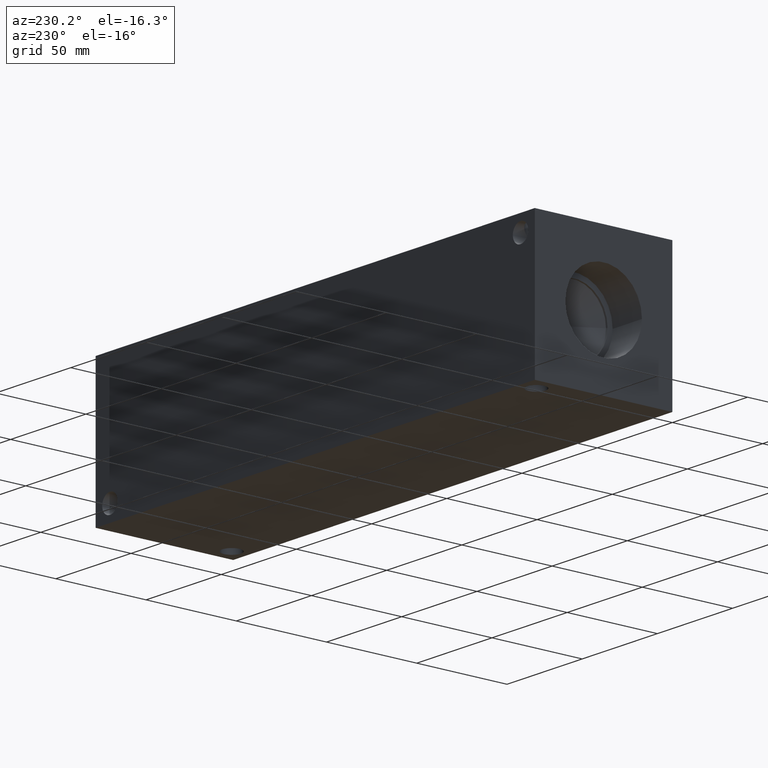
[diagram: clean part render]
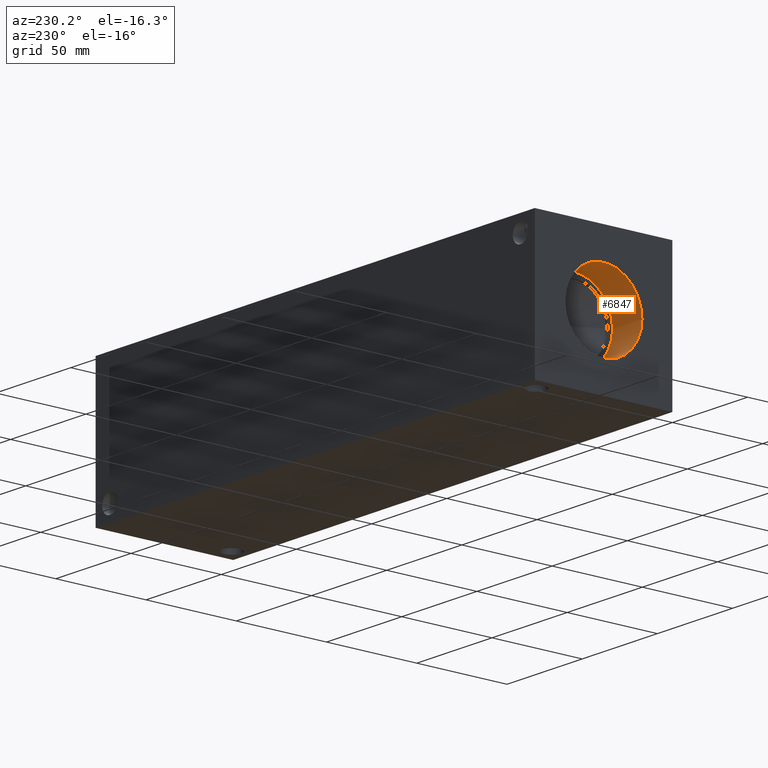
[diagram: same view with one face highlighted and labeled with its STEP entity id]
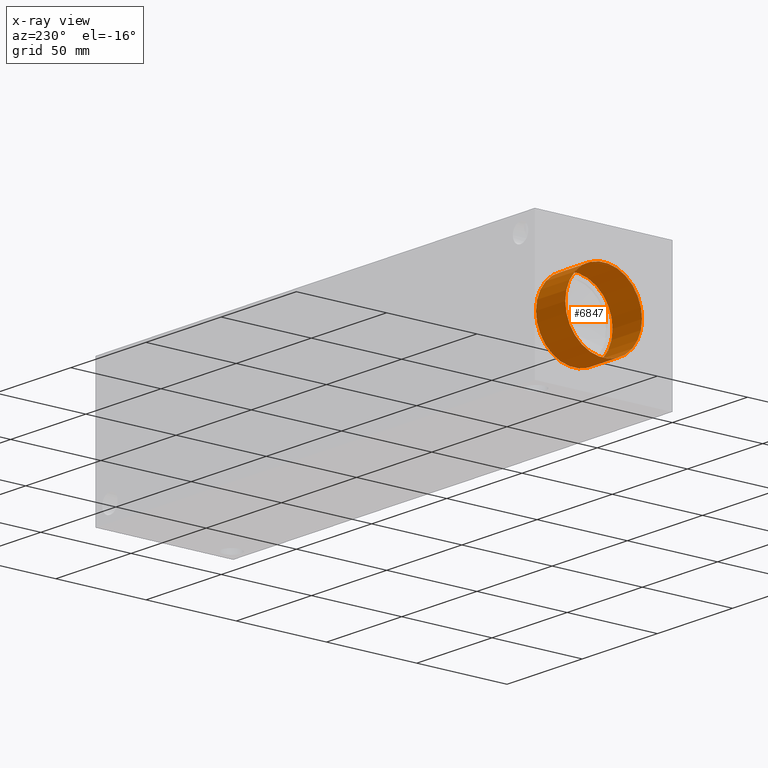
[diagram: x-ray of the same camera — body ghosted, the highlighted face saturated]
A machine part, auxiliary view. The second image highlights one B-rep face of the part: STEP entity #6847.
The next image is the same camera in x-ray: the body ghosted, the highlighted face saturated — about 0% of this face is hidden behind the body in this view.
In plain terms, the highlighted cylindrical surface (bore or boss wall) has radius 21.2344 mm, axis along (-1, 0, 0).
Its self-contained STEP definition (entity closure, byte-faithful):
#24=CYLINDRICAL_SURFACE('',#7126,21.2344);
#64=CIRCLE('',#7123,21.2344);
#65=CIRCLE('',#7124,21.2344);
#67=CIRCLE('',#7127,21.2344);
#68=CIRCLE('',#7128,21.2344);
#765=FACE_OUTER_BOUND('',#1146,.T.);
#1146=EDGE_LOOP('',(#5857,#5858,#5859,#5860,#5861,#5862));
#1839=LINE('',#11607,#2520);
#2520=VECTOR('',#8323,21.2344);
#3140=VERTEX_POINT('',#11596);
#3141=VERTEX_POINT('',#11597);
#3143=VERTEX_POINT('',#11603);
#3144=VERTEX_POINT('',#11604);
#4058=EDGE_CURVE('',#3140,#3141,#64,.T.);
#4059=EDGE_CURVE('',#3141,#3140,#65,.T.);
#4061=EDGE_CURVE('',#3143,#3144,#67,.T.);
#4062=EDGE_CURVE('',#3144,#3143,#68,.T.);
#4063=EDGE_CURVE('',#3144,#3141,#1839,.T.);
#5857=ORIENTED_EDGE('',*,*,#4061,.F.);
#5858=ORIENTED_EDGE('',*,*,#4062,.F.);
#5859=ORIENTED_EDGE('',*,*,#4063,.T.);
#5860=ORIENTED_EDGE('',*,*,#4058,.F.);
#5861=ORIENTED_EDGE('',*,*,#4059,.F.);
#5862=ORIENTED_EDGE('',*,*,#4063,.F.);
#6847=ADVANCED_FACE('',(#765),#24,.F.);
#7123=AXIS2_PLACEMENT_3D('',#11598,#8311,#8312);
#7124=AXIS2_PLACEMENT_3D('',#11599,#8313,#8314);
#7126=AXIS2_PLACEMENT_3D('',#11602,#8317,#8318);
#7127=AXIS2_PLACEMENT_3D('',#11605,#8319,#8320);
#7128=AXIS2_PLACEMENT_3D('',#11606,#8321,#8322);
#8311=DIRECTION('center_axis',(-1.,0.,0.));
#8312=DIRECTION('ref_axis',(0.,1.,0.));
#8313=DIRECTION('center_axis',(-1.,0.,0.));
#8314=DIRECTION('ref_axis',(0.,1.,0.));
#8317=DIRECTION('center_axis',(-1.,0.,0.));
#8318=DIRECTION('ref_axis',(0.,1.,0.));
#8319=DIRECTION('center_axis',(1.,0.,0.));
#8320=DIRECTION('ref_axis',(0.,1.,0.));
#8321=DIRECTION('center_axis',(1.,0.,0.));
#8322=DIRECTION('ref_axis',(0.,1.,0.));
#8323=DIRECTION('',(1.,0.,0.));
#11596=CARTESIAN_POINT('',(19.5072,59.3344,38.1));
#11597=CARTESIAN_POINT('',(19.5072,16.8656,38.1));
#11598=CARTESIAN_POINT('Origin',(19.5072,38.1,38.1));
#11599=CARTESIAN_POINT('Origin',(19.5072,38.1,38.1));
#11602=CARTESIAN_POINT('Origin',(9.7536,38.1,38.1));
#11603=CARTESIAN_POINT('',(0.,59.3344,38.1));
#11604=CARTESIAN_POINT('',(0.,16.8656,38.1));
#11605=CARTESIAN_POINT('Origin',(0.,38.1,38.1));
#11606=CARTESIAN_POINT('Origin',(0.,38.1,38.1));
#11607=CARTESIAN_POINT('',(9.7536,16.8656,38.1));